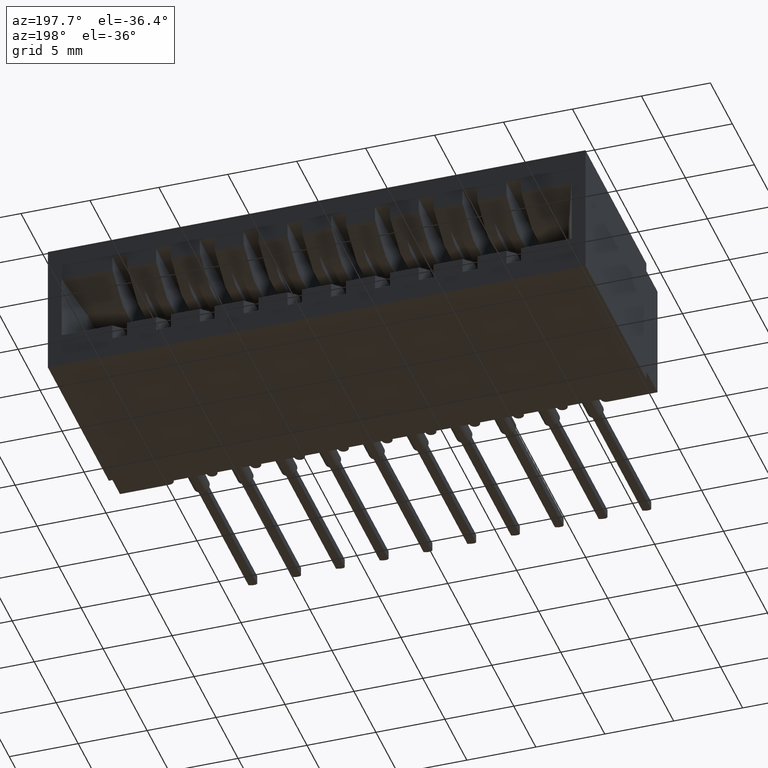
[diagram: clean part render]
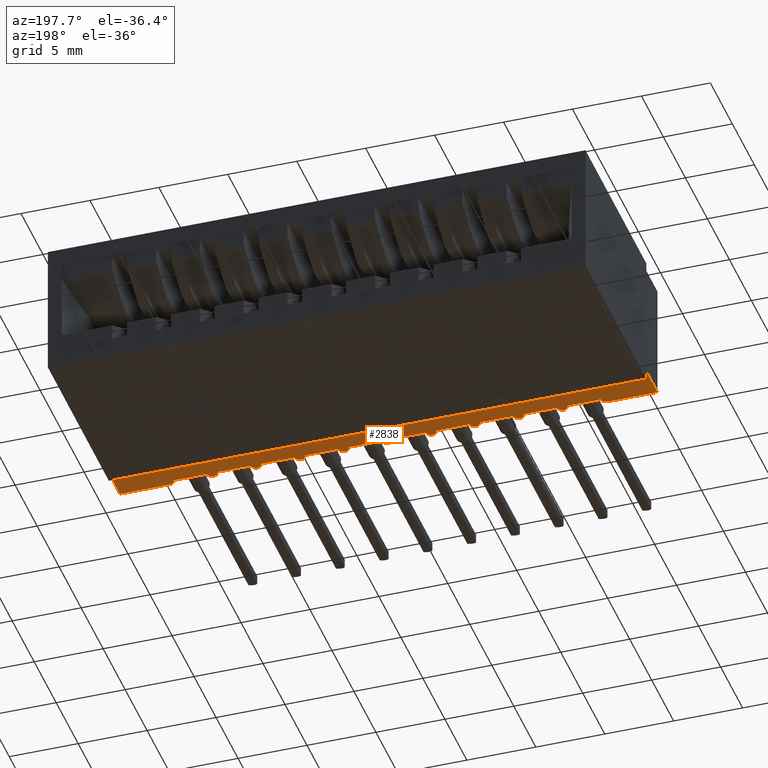
[diagram: same view with one face highlighted and labeled with its STEP entity id]
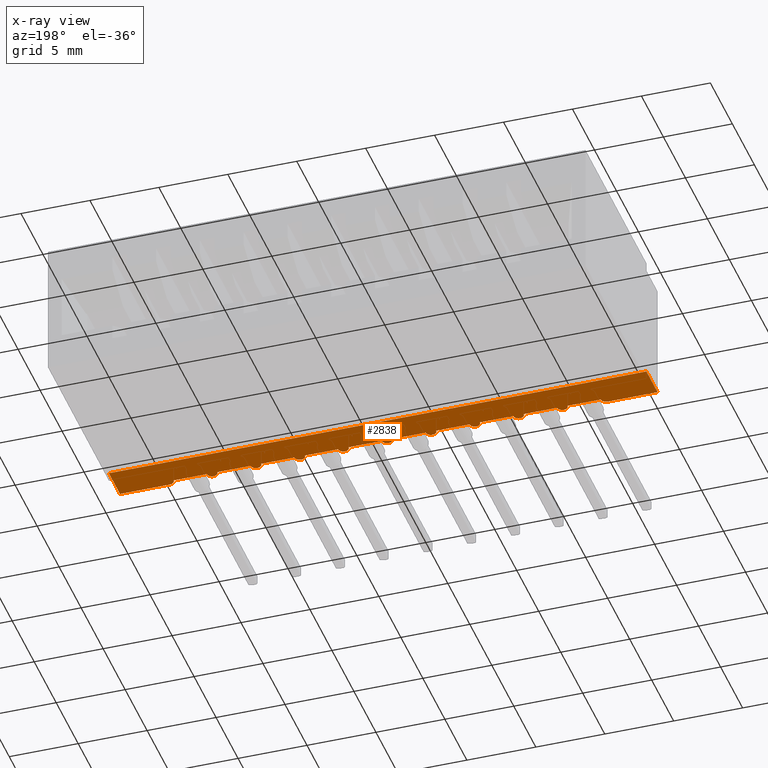
[diagram: x-ray of the same camera — body ghosted, the highlighted face saturated]
A machine part, auxiliary view. The second image highlights one B-rep face of the part: STEP entity #2838.
The next image is the same camera in x-ray: the body ghosted, the highlighted face saturated — about 0% of this face is hidden behind the body in this view.
In plain terms, the highlighted planar face has unit normal (0, 0, 1).
Its self-contained STEP definition (entity closure, byte-faithful):
#83 = ORIENTED_EDGE ( 'NONE', *, *, #10981, .F. ) ;
#177 = CARTESIAN_POINT ( 'NONE',  ( 1.127499999999999725, 0.01499999999999997169, -0.3649999999999999911 ) ) ;
#202 = VECTOR ( 'NONE', #18973, 39.37007874015748143 ) ;
#217 = VECTOR ( 'NONE', #6059, 39.37007874015748143 ) ;
#295 = DIRECTION ( 'NONE',  ( 0.0000000000000000000, 0.0000000000000000000, 1.000000000000000000 ) ) ;
#345 = DIRECTION ( 'NONE',  ( 1.000000000000000000, -0.0000000000000000000, -2.307304048702925122E-16 ) ) ;
#571 = VERTEX_POINT ( 'NONE', #16185 ) ;
#825 = DIRECTION ( 'NONE',  ( 0.0000000000000000000, 0.0000000000000000000, 1.000000000000000000 ) ) ;
#835 = VERTEX_POINT ( 'NONE', #16963 ) ;
#879 = VERTEX_POINT ( 'NONE', #5024 ) ;
#917 = LINE ( 'NONE', #16245, #2804 ) ;
#1002 = DIRECTION ( 'NONE',  ( 1.000000000000000000, -0.0000000000000000000, -2.307304048702925122E-16 ) ) ;
#1163 = CIRCLE ( 'NONE', #16117, 0.01499999999999997689 ) ;
#1185 = CARTESIAN_POINT ( 'NONE',  ( 0.9339999999999994973, 0.01499999999999996302, -0.3649999999999999911 ) ) ;
#1249 = AXIS2_PLACEMENT_3D ( 'NONE', #7825, #6345, #12416 ) ;
#1491 = VECTOR ( 'NONE', #345, 39.37007874015748143 ) ;
#1553 = DIRECTION ( 'NONE',  ( 0.0000000000000000000, 1.000000000000000000, 0.0000000000000000000 ) ) ;
#1630 = CARTESIAN_POINT ( 'NONE',  ( 0.5589999999999996083, 0.01499999999999996302, -0.3649999999999999911 ) ) ;
#1839 = CIRCLE ( 'NONE', #18989, 0.01500000000000001159 ) ;
#1890 = VERTEX_POINT ( 'NONE', #11909 ) ;
#1912 = CARTESIAN_POINT ( 'NONE',  ( 1.032499999999999751, 0.01499999999999997169, -0.3649999999999999911 ) ) ;
#1914 = VERTEX_POINT ( 'NONE', #7631 ) ;
#1954 = CIRCLE ( 'NONE', #17463, 0.01499999999999997689 ) ;
#2108 = DIRECTION ( 'NONE',  ( 0.0000000000000000000, 0.0000000000000000000, 1.000000000000000000 ) ) ;
#2114 = ORIENTED_EDGE ( 'NONE', *, *, #4208, .F. ) ;
#2254 = ORIENTED_EDGE ( 'NONE', *, *, #13816, .F. ) ;
#2290 = VERTEX_POINT ( 'NONE', #8053 ) ;
#2359 = VERTEX_POINT ( 'NONE', #15617 ) ;
#2564 = EDGE_CURVE ( 'NONE', #11826, #9293, #18626, .T. ) ;
#2610 = CARTESIAN_POINT ( 'NONE',  ( 1.377499999999999725, 0.01499999999999997169, -0.3649999999999999911 ) ) ;
#2710 = CARTESIAN_POINT ( 'NONE',  ( 1.534999999999999920, 0.0000000000000000000, -0.3649999999999999911 ) ) ;
#2724 = ORIENTED_EDGE ( 'NONE', *, *, #9885, .T. ) ;
#2789 = CIRCLE ( 'NONE', #4686, 0.01500000000000001159 ) ;
#2804 = VECTOR ( 'NONE', #6993, 39.37007874015748143 ) ;
#2807 = CARTESIAN_POINT ( 'NONE',  ( 1.002499999999999725, 0.01499999999999997169, -0.3649999999999999911 ) ) ;
#2838 = ADVANCED_FACE ( 'NONE', ( #4311 ), #7591, .F. ) ;
#2864 = VERTEX_POINT ( 'NONE', #1912 ) ;
#2916 = ORIENTED_EDGE ( 'NONE', *, *, #11750, .F. ) ;
#2932 = CARTESIAN_POINT ( 'NONE',  ( 1.017499999999999627, 0.01499999999999997169, -0.3649999999999999911 ) ) ;
#3288 = DIRECTION ( 'NONE',  ( 0.0000000000000000000, 0.0000000000000000000, 1.000000000000000000 ) ) ;
#3463 = CARTESIAN_POINT ( 'NONE',  ( 0.7824999999999997513, 0.01499999999999997169, -0.3649999999999999911 ) ) ;
#3552 = CARTESIAN_POINT ( 'NONE',  ( 0.2524999999999996692, 0.01499999999999997169, -0.3649999999999999911 ) ) ;
#3586 = CARTESIAN_POINT ( 'NONE',  ( 1.308999999999999941, 0.01499999999999996302, -0.3649999999999999911 ) ) ;
#3829 = CARTESIAN_POINT ( 'NONE',  ( 0.2674999999999996825, 0.01499999999999997169, -0.3649999999999999911 ) ) ;
#3975 = CARTESIAN_POINT ( 'NONE',  ( 1.534999999999999920, 0.0000000000000000000, -0.3649999999999999911 ) ) ;
#4093 = AXIS2_PLACEMENT_3D ( 'NONE', #4117, #9982, #11284 ) ;
#4101 = CIRCLE ( 'NONE', #8539, 0.01499999999999997689 ) ;
#4117 = CARTESIAN_POINT ( 'NONE',  ( 0.5174999999999996270, 0.01499999999999997169, -0.3649999999999999911 ) ) ;
#4125 = CARTESIAN_POINT ( 'NONE',  ( 0.5324999999999997513, 0.01499999999999997169, -0.3649999999999999911 ) ) ;
#4208 = EDGE_CURVE ( 'NONE', #6553, #12567, #15935, .T. ) ;
#4210 = CARTESIAN_POINT ( 'NONE',  ( 1.282499999999999751, 0.01499999999999997169, -0.3649999999999999911 ) ) ;
#4311 = FACE_OUTER_BOUND ( 'NONE', #12197, .T. ) ;
#4528 = EDGE_CURVE ( 'NONE', #18903, #879, #10956, .T. ) ;
#4576 = EDGE_CURVE ( 'NONE', #13509, #6315, #18694, .T. ) ;
#4686 = AXIS2_PLACEMENT_3D ( 'NONE', #3829, #10200, #5900 ) ;
#4745 = LINE ( 'NONE', #9334, #7307 ) ;
#4764 = ORIENTED_EDGE ( 'NONE', *, *, #15841, .F. ) ;
#4890 = DIRECTION ( 'NONE',  ( 1.000000000000000000, 0.0000000000000000000, 0.0000000000000000000 ) ) ;
#4941 = EDGE_CURVE ( 'NONE', #13509, #2290, #19652, .T. ) ;
#5024 = CARTESIAN_POINT ( 'NONE',  ( 0.8774999999999997247, 0.01499999999999997169, -0.3649999999999999911 ) ) ;
#5030 = VECTOR ( 'NONE', #14461, 39.37007874015748143 ) ;
#5546 = DIRECTION ( 'NONE',  ( 0.0000000000000000000, 0.0000000000000000000, 1.000000000000000000 ) ) ;
#5648 = DIRECTION ( 'NONE',  ( 0.0000000000000000000, 0.0000000000000000000, 1.000000000000000000 ) ) ;
#5702 = DIRECTION ( 'NONE',  ( 1.000000000000000000, 0.0000000000000000000, -0.0000000000000000000 ) ) ;
#5896 = ORIENTED_EDGE ( 'NONE', *, *, #13953, .F. ) ;
#5900 = DIRECTION ( 'NONE',  ( 1.000000000000000000, 0.0000000000000000000, 0.0000000000000000000 ) ) ;
#5933 = DIRECTION ( 'NONE',  ( 1.000000000000000000, -0.0000000000000000000, -2.307304048702925122E-16 ) ) ;
#6059 = DIRECTION ( 'NONE',  ( 0.0000000000000000000, 1.000000000000000000, 0.0000000000000000000 ) ) ;
#6233 = CARTESIAN_POINT ( 'NONE',  ( 0.0000000000000000000, 0.0000000000000000000, -0.3649999999999999911 ) ) ;
#6273 = DIRECTION ( 'NONE',  ( 1.000000000000000000, -0.0000000000000000000, -2.307304048702925122E-16 ) ) ;
#6315 = VERTEX_POINT ( 'NONE', #12692 ) ;
#6345 = DIRECTION ( 'NONE',  ( 0.0000000000000000000, 0.0000000000000000000, 1.000000000000000000 ) ) ;
#6400 = VERTEX_POINT ( 'NONE', #2610 ) ;
#6459 = CARTESIAN_POINT ( 'NONE',  ( 1.534999999999999920, 0.0000000000000000000, -0.3649999999999999911 ) ) ;
#6464 = ORIENTED_EDGE ( 'NONE', *, *, #17682, .F. ) ;
#6553 = VERTEX_POINT ( 'NONE', #8160 ) ;
#6624 = EDGE_CURVE ( 'NONE', #12447, #835, #9662, .T. ) ;
#6905 = DIRECTION ( 'NONE',  ( 1.000000000000000000, 0.0000000000000000000, 0.0000000000000000000 ) ) ;
#6993 = DIRECTION ( 'NONE',  ( 1.000000000000000000, -0.0000000000000000000, -2.307304048702925122E-16 ) ) ;
#6996 = ORIENTED_EDGE ( 'NONE', *, *, #9042, .F. ) ;
#7303 = EDGE_CURVE ( 'NONE', #9259, #18333, #7337, .T. ) ;
#7307 = VECTOR ( 'NONE', #15389, 39.37007874015748143 ) ;
#7337 = LINE ( 'NONE', #10419, #15567 ) ;
#7591 = PLANE ( 'NONE',  #11442 ) ;
#7631 = CARTESIAN_POINT ( 'NONE',  ( 0.5024999999999996136, 0.01499999999999997169, -0.3649999999999999911 ) ) ;
#7695 = CARTESIAN_POINT ( 'NONE',  ( 0.4074999999999996958, 0.01499999999999997169, -0.3649999999999999911 ) ) ;
#7792 = CARTESIAN_POINT ( 'NONE',  ( 1.267499999999999627, 0.01499999999999997169, -0.3649999999999999911 ) ) ;
#7825 = CARTESIAN_POINT ( 'NONE',  ( 0.8924999999999997380, 0.01499999999999997169, -0.3649999999999999911 ) ) ;
#7830 = VERTEX_POINT ( 'NONE', #7695 ) ;
#7879 = ORIENTED_EDGE ( 'NONE', *, *, #6624, .F. ) ;
#7980 = DIRECTION ( 'NONE',  ( 1.000000000000000000, -0.0000000000000000000, -2.307304048702925122E-16 ) ) ;
#7992 = ORIENTED_EDGE ( 'NONE', *, *, #7303, .F. ) ;
#8053 = CARTESIAN_POINT ( 'NONE',  ( 1.534999999999999920, 0.1000000000000000056, -0.3649999999999999911 ) ) ;
#8060 = CIRCLE ( 'NONE', #13132, 0.01499999999999997689 ) ;
#8160 = CARTESIAN_POINT ( 'NONE',  ( 0.6574999999999997513, 0.01499999999999997169, -0.3649999999999999911 ) ) ;
#8170 = VECTOR ( 'NONE', #6273, 39.37007874015748143 ) ;
#8219 = LINE ( 'NONE', #17353, #8508 ) ;
#8393 = CARTESIAN_POINT ( 'NONE',  ( 1.534999999999999920, 0.0000000000000000000, -0.3649999999999999911 ) ) ;
#8508 = VECTOR ( 'NONE', #14188, 39.37007874015748143 ) ;
#8539 = AXIS2_PLACEMENT_3D ( 'NONE', #15904, #17199, #9839 ) ;
#8746 = ORIENTED_EDGE ( 'NONE', *, *, #14856, .F. ) ;
#8811 = ORIENTED_EDGE ( 'NONE', *, *, #18476, .F. ) ;
#9042 = EDGE_CURVE ( 'NONE', #2359, #15312, #917, .T. ) ;
#9087 = EDGE_CURVE ( 'NONE', #11238, #571, #17430, .T. ) ;
#9154 = DIRECTION ( 'NONE',  ( 1.000000000000000000, -0.0000000000000000000, -2.307304048702925122E-16 ) ) ;
#9168 = EDGE_CURVE ( 'NONE', #1914, #11826, #18691, .T. ) ;
#9203 = VERTEX_POINT ( 'NONE', #2807 ) ;
#9259 = VERTEX_POINT ( 'NONE', #17830 ) ;
#9293 = VERTEX_POINT ( 'NONE', #10580 ) ;
#9334 = CARTESIAN_POINT ( 'NONE',  ( 0.4339999999999996083, 0.01499999999999996302, -0.3649999999999999911 ) ) ;
#9340 = EDGE_CURVE ( 'NONE', #2359, #11238, #1839, .T. ) ;
#9372 = CARTESIAN_POINT ( 'NONE',  ( 0.1424999999999997102, 0.01499999999999997169, -0.3649999999999999911 ) ) ;
#9662 = LINE ( 'NONE', #9746, #10508 ) ;
#9665 = VERTEX_POINT ( 'NONE', #177 ) ;
#9679 = ORIENTED_EDGE ( 'NONE', *, *, #9087, .T. ) ;
#9746 = CARTESIAN_POINT ( 'NONE',  ( 1.183999999999999497, 0.01499999999999996302, -0.3649999999999999911 ) ) ;
#9750 = ORIENTED_EDGE ( 'NONE', *, *, #12569, .F. ) ;
#9788 = CIRCLE ( 'NONE', #10122, 0.01499999999999997689 ) ;
#9839 = DIRECTION ( 'NONE',  ( 1.000000000000000000, 0.0000000000000000000, 0.0000000000000000000 ) ) ;
#9885 = EDGE_CURVE ( 'NONE', #571, #1890, #18254, .T. ) ;
#9982 = DIRECTION ( 'NONE',  ( 0.0000000000000000000, 0.0000000000000000000, 1.000000000000000000 ) ) ;
#10122 = AXIS2_PLACEMENT_3D ( 'NONE', #10862, #3288, #11942 ) ;
#10200 = DIRECTION ( 'NONE',  ( 0.0000000000000000000, 0.0000000000000000000, 1.000000000000000000 ) ) ;
#10336 = CARTESIAN_POINT ( 'NONE',  ( 1.142499999999999627, 0.01499999999999997169, -0.3649999999999999911 ) ) ;
#10419 = CARTESIAN_POINT ( 'NONE',  ( 0.3089999999999996083, 0.01499999999999996302, -0.3649999999999999911 ) ) ;
#10508 = VECTOR ( 'NONE', #7980, 39.37007874015748143 ) ;
#10580 = CARTESIAN_POINT ( 'NONE',  ( 0.6274999999999996136, 0.01499999999999997169, -0.3649999999999999911 ) ) ;
#10800 = VERTEX_POINT ( 'NONE', #17493 ) ;
#10862 = CARTESIAN_POINT ( 'NONE',  ( 0.6424999999999996270, 0.01499999999999997169, -0.3649999999999999911 ) ) ;
#10956 = LINE ( 'NONE', #12446, #8170 ) ;
#10981 = EDGE_CURVE ( 'NONE', #9665, #12447, #8060, .T. ) ;
#11238 = VERTEX_POINT ( 'NONE', #18655 ) ;
#11284 = DIRECTION ( 'NONE',  ( 1.000000000000000000, 0.0000000000000000000, 0.0000000000000000000 ) ) ;
#11421 = ORIENTED_EDGE ( 'NONE', *, *, #4576, .T. ) ;
#11442 = AXIS2_PLACEMENT_3D ( 'NONE', #2710, #16638, #5702 ) ;
#11469 = CARTESIAN_POINT ( 'NONE',  ( 0.6839999999999996083, 0.01499999999999996302, -0.3649999999999999911 ) ) ;
#11491 = CARTESIAN_POINT ( 'NONE',  ( 0.3924999999999996825, 0.01499999999999997169, -0.3649999999999999911 ) ) ;
#11750 = EDGE_CURVE ( 'NONE', #15312, #9259, #2789, .T. ) ;
#11826 = VERTEX_POINT ( 'NONE', #4125 ) ;
#11909 = CARTESIAN_POINT ( 'NONE',  ( 0.0000000000000000000, 0.1000000000000000056, -0.3649999999999999911 ) ) ;
#11942 = DIRECTION ( 'NONE',  ( 1.000000000000000000, 0.0000000000000000000, 0.0000000000000000000 ) ) ;
#12197 = EDGE_LOOP ( 'NONE', ( #9750, #5896, #7879, #83, #16877, #2254, #4764, #17891, #16531, #8811, #2114, #19248, #18164, #12988, #6464, #13331, #7992, #2916, #6996, #14709, #9679, #2724, #12215, #14614, #11421, #8746 ) ) ;
#12215 = ORIENTED_EDGE ( 'NONE', *, *, #15266, .F. ) ;
#12325 = VECTOR ( 'NONE', #9154, 39.37007874015748143 ) ;
#12416 = DIRECTION ( 'NONE',  ( 1.000000000000000000, 0.0000000000000000000, 0.0000000000000000000 ) ) ;
#12446 = CARTESIAN_POINT ( 'NONE',  ( 0.8089999999999996083, 0.01499999999999996302, -0.3649999999999999911 ) ) ;
#12447 = VERTEX_POINT ( 'NONE', #16524 ) ;
#12469 = EDGE_CURVE ( 'NONE', #9293, #6553, #9788, .T. ) ;
#12567 = VERTEX_POINT ( 'NONE', #14229 ) ;
#12569 = EDGE_CURVE ( 'NONE', #14203, #6400, #17210, .T. ) ;
#12572 = DIRECTION ( 'NONE',  ( 1.000000000000000000, 0.0000000000000000000, 0.0000000000000000000 ) ) ;
#12692 = CARTESIAN_POINT ( 'NONE',  ( 1.392499999999999627, 0.0000000000000000000, -0.3649999999999999911 ) ) ;
#12988 = ORIENTED_EDGE ( 'NONE', *, *, #9168, .F. ) ;
#13132 = AXIS2_PLACEMENT_3D ( 'NONE', #10336, #5648, #13512 ) ;
#13331 = ORIENTED_EDGE ( 'NONE', *, *, #18353, .F. ) ;
#13336 = CIRCLE ( 'NONE', #14924, 0.01499999999999997689 ) ;
#13509 = VERTEX_POINT ( 'NONE', #6459 ) ;
#13512 = DIRECTION ( 'NONE',  ( 1.000000000000000000, 0.0000000000000000000, 0.0000000000000000000 ) ) ;
#13816 = EDGE_CURVE ( 'NONE', #9203, #2864, #18090, .T. ) ;
#13936 = DIRECTION ( 'NONE',  ( 1.000000000000000000, -0.0000000000000000000, -2.307304048702925122E-16 ) ) ;
#13953 = EDGE_CURVE ( 'NONE', #835, #14203, #13336, .T. ) ;
#13982 = VECTOR ( 'NONE', #15451, 39.37007874015748143 ) ;
#13988 = LINE ( 'NONE', #17158, #1491 ) ;
#14188 = DIRECTION ( 'NONE',  ( -1.000000000000000000, -0.0000000000000000000, -0.0000000000000000000 ) ) ;
#14203 = VERTEX_POINT ( 'NONE', #4210 ) ;
#14229 = CARTESIAN_POINT ( 'NONE',  ( 0.7524999999999997247, 0.01499999999999997169, -0.3649999999999999911 ) ) ;
#14283 = AXIS2_PLACEMENT_3D ( 'NONE', #2932, #5546, #19247 ) ;
#14461 = DIRECTION ( 'NONE',  ( -1.000000000000000000, -0.0000000000000000000, -0.0000000000000000000 ) ) ;
#14469 = CARTESIAN_POINT ( 'NONE',  ( 0.3774999999999996692, 0.01499999999999997169, -0.3649999999999999911 ) ) ;
#14614 = ORIENTED_EDGE ( 'NONE', *, *, #4941, .F. ) ;
#14709 = ORIENTED_EDGE ( 'NONE', *, *, #9340, .T. ) ;
#14828 = LINE ( 'NONE', #1185, #12325 ) ;
#14856 = EDGE_CURVE ( 'NONE', #6400, #6315, #4101, .T. ) ;
#14924 = AXIS2_PLACEMENT_3D ( 'NONE', #7792, #2108, #12572 ) ;
#15266 = EDGE_CURVE ( 'NONE', #2290, #1890, #8219, .T. ) ;
#15300 = CARTESIAN_POINT ( 'NONE',  ( 1.534999999999999920, 0.0000000000000000000, -0.3649999999999999911 ) ) ;
#15312 = VERTEX_POINT ( 'NONE', #3552 ) ;
#15389 = DIRECTION ( 'NONE',  ( 1.000000000000000000, -0.0000000000000000000, -2.307304048702925122E-16 ) ) ;
#15427 = DIRECTION ( 'NONE',  ( -0.0000000000000000000, -0.0000000000000000000, -1.000000000000000000 ) ) ;
#15451 = DIRECTION ( 'NONE',  ( 1.000000000000000000, -0.0000000000000000000, -2.307304048702925122E-16 ) ) ;
#15567 = VECTOR ( 'NONE', #5933, 39.37007874015748143 ) ;
#15617 = CARTESIAN_POINT ( 'NONE',  ( 0.1574999999999997236, 0.01499999999999997169, -0.3649999999999999911 ) ) ;
#15841 = EDGE_CURVE ( 'NONE', #10800, #9203, #14828, .T. ) ;
#15904 = CARTESIAN_POINT ( 'NONE',  ( 1.392499999999999627, 0.01499999999999997169, -0.3649999999999999911 ) ) ;
#15935 = LINE ( 'NONE', #11469, #18304 ) ;
#16117 = AXIS2_PLACEMENT_3D ( 'NONE', #11491, #825, #6905 ) ;
#16185 = CARTESIAN_POINT ( 'NONE',  ( 0.0000000000000000000, 0.0000000000000000000, -0.3649999999999999911 ) ) ;
#16245 = CARTESIAN_POINT ( 'NONE',  ( 0.1839999999999996083, 0.01499999999999996302, -0.3649999999999999911 ) ) ;
#16480 = VECTOR ( 'NONE', #1553, 39.37007874015748143 ) ;
#16524 = CARTESIAN_POINT ( 'NONE',  ( 1.157499999999999751, 0.01499999999999997169, -0.3649999999999999911 ) ) ;
#16531 = ORIENTED_EDGE ( 'NONE', *, *, #4528, .F. ) ;
#16638 = DIRECTION ( 'NONE',  ( 0.0000000000000000000, 0.0000000000000000000, 1.000000000000000000 ) ) ;
#16877 = ORIENTED_EDGE ( 'NONE', *, *, #18258, .F. ) ;
#16963 = CARTESIAN_POINT ( 'NONE',  ( 1.252499999999999503, 0.01499999999999997169, -0.3649999999999999911 ) ) ;
#17158 = CARTESIAN_POINT ( 'NONE',  ( 1.058999999999999497, 0.01499999999999996302, -0.3649999999999999911 ) ) ;
#17199 = DIRECTION ( 'NONE',  ( 0.0000000000000000000, 0.0000000000000000000, 1.000000000000000000 ) ) ;
#17210 = LINE ( 'NONE', #3586, #19302 ) ;
#17353 = CARTESIAN_POINT ( 'NONE',  ( 1.534999999999999920, 0.1000000000000000056, -0.3649999999999999911 ) ) ;
#17430 = LINE ( 'NONE', #8393, #5030 ) ;
#17463 = AXIS2_PLACEMENT_3D ( 'NONE', #18400, #295, #18590 ) ;
#17493 = CARTESIAN_POINT ( 'NONE',  ( 0.9074999999999996403, 0.01499999999999997169, -0.3649999999999999911 ) ) ;
#17682 = EDGE_CURVE ( 'NONE', #7830, #1914, #4745, .T. ) ;
#17696 = EDGE_CURVE ( 'NONE', #879, #10800, #18411, .T. ) ;
#17830 = CARTESIAN_POINT ( 'NONE',  ( 0.2824999999999996958, 0.01499999999999997169, -0.3649999999999999911 ) ) ;
#17891 = ORIENTED_EDGE ( 'NONE', *, *, #17696, .F. ) ;
#18090 = CIRCLE ( 'NONE', #14283, 0.01499999999999997689 ) ;
#18164 = ORIENTED_EDGE ( 'NONE', *, *, #2564, .F. ) ;
#18254 = LINE ( 'NONE', #6233, #16480 ) ;
#18258 = EDGE_CURVE ( 'NONE', #2864, #9665, #13988, .T. ) ;
#18304 = VECTOR ( 'NONE', #1002, 39.37007874015748143 ) ;
#18333 = VERTEX_POINT ( 'NONE', #14469 ) ;
#18353 = EDGE_CURVE ( 'NONE', #18333, #7830, #1163, .T. ) ;
#18400 = CARTESIAN_POINT ( 'NONE',  ( 0.7674999999999996270, 0.01499999999999997169, -0.3649999999999999911 ) ) ;
#18411 = CIRCLE ( 'NONE', #1249, 0.01499999999999997689 ) ;
#18476 = EDGE_CURVE ( 'NONE', #12567, #18903, #1954, .T. ) ;
#18590 = DIRECTION ( 'NONE',  ( 1.000000000000000000, 0.0000000000000000000, 0.0000000000000000000 ) ) ;
#18626 = LINE ( 'NONE', #1630, #13982 ) ;
#18655 = CARTESIAN_POINT ( 'NONE',  ( 0.1424999999999997102, 0.0000000000000000000, -0.3649999999999999911 ) ) ;
#18691 = CIRCLE ( 'NONE', #4093, 0.01499999999999997689 ) ;
#18694 = LINE ( 'NONE', #3975, #202 ) ;
#18903 = VERTEX_POINT ( 'NONE', #3463 ) ;
#18973 = DIRECTION ( 'NONE',  ( -1.000000000000000000, -0.0000000000000000000, -0.0000000000000000000 ) ) ;
#18989 = AXIS2_PLACEMENT_3D ( 'NONE', #9372, #15427, #4890 ) ;
#19247 = DIRECTION ( 'NONE',  ( 1.000000000000000000, 0.0000000000000000000, 0.0000000000000000000 ) ) ;
#19248 = ORIENTED_EDGE ( 'NONE', *, *, #12469, .F. ) ;
#19302 = VECTOR ( 'NONE', #13936, 39.37007874015748143 ) ;
#19652 = LINE ( 'NONE', #15300, #217 ) ;